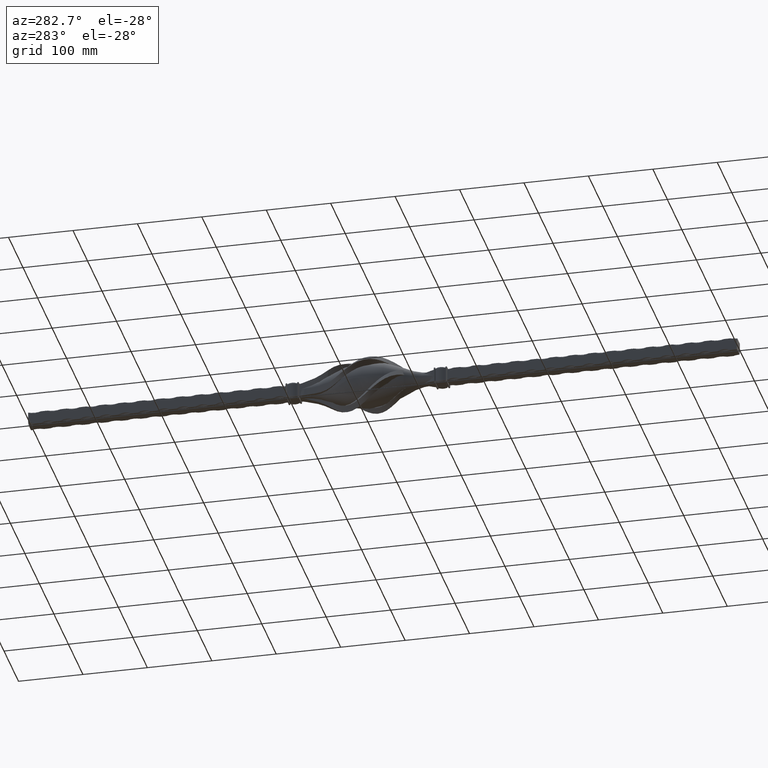
[diagram: clean part render]
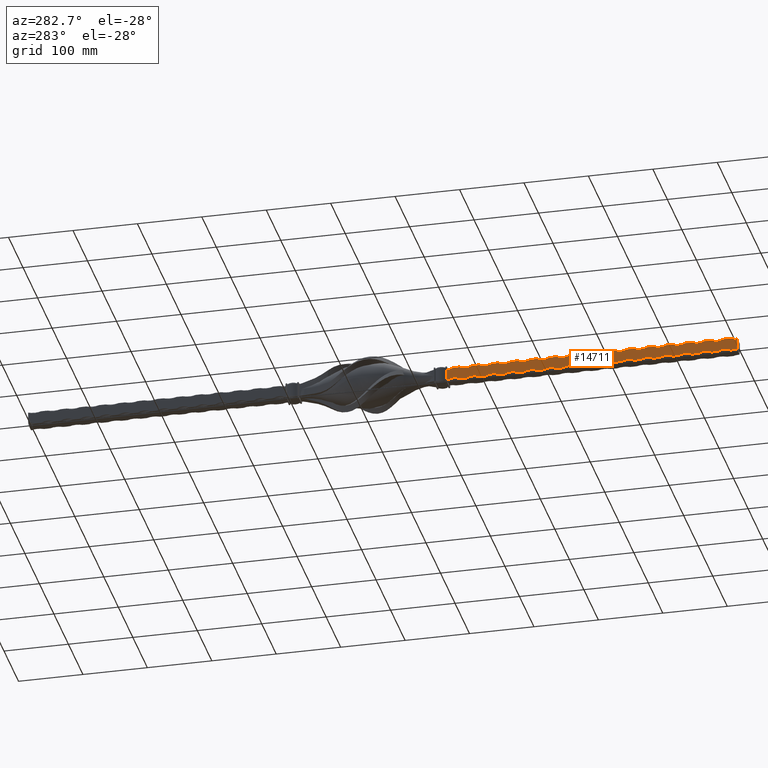
[diagram: same view with one face highlighted and labeled with its STEP entity id]
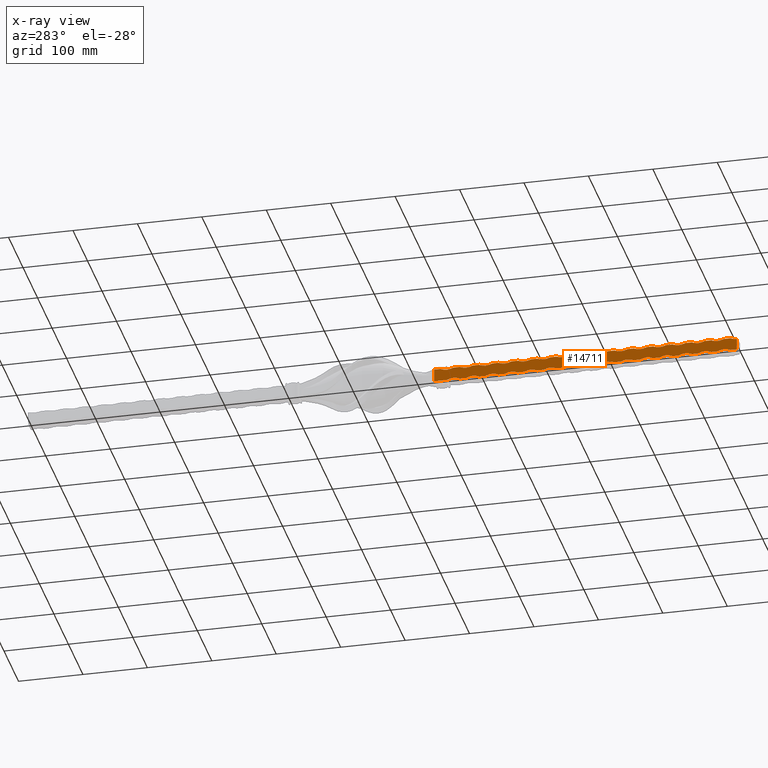
[diagram: x-ray of the same camera — body ghosted, the highlighted face saturated]
A machine part, auxiliary view. The second image highlights one B-rep face of the part: STEP entity #14711.
The next image is the same camera in x-ray: the body ghosted, the highlighted face saturated — about 0% of this face is hidden behind the body in this view.
In plain terms, the highlighted planar face has unit normal (1, 0, 0).
Its self-contained STEP definition (entity closure, byte-faithful):
#22 = AXIS2_PLACEMENT_3D ( 'NONE', #8139, #8230, #25063 ) ;
#45 = DIRECTION ( 'NONE',  ( 1.000000000000000000, 0.000000000000000000, 1.146305272925462611E-14 ) ) ;
#132 = FACE_OUTER_BOUND ( 'NONE', #1181, .T. ) ;
#171 = AXIS2_PLACEMENT_3D ( 'NONE', #12129, #1594, #22721 ) ;
#204 = AXIS2_PLACEMENT_3D ( 'NONE', #10256, #8358, #14726 ) ;
#220 = EDGE_CURVE ( 'NONE', #9223, #2714, #6724, .T. ) ;
#245 = VECTOR ( 'NONE', #13473, 1000.000000000000000 ) ;
#259 = VECTOR ( 'NONE', #478, 1000.000000000000000 ) ;
#324 = DIRECTION ( 'NONE',  ( 1.126549833810818380E-14, 0.000000000000000000, -1.000000000000000000 ) ) ;
#339 = AXIS2_PLACEMENT_3D ( 'NONE', #4257, #25103, #24757 ) ;
#394 = CARTESIAN_POINT ( 'NONE',  ( -9.999999999999895195, -125.0000000000000000, -10.00000000000010303 ) ) ;
#434 = VECTOR ( 'NONE', #11887, 1000.000000000000000 ) ;
#436 = DIRECTION ( 'NONE',  ( -0.000000000000000000, 1.000000000000000000, -0.000000000000000000 ) ) ;
#441 = CARTESIAN_POINT ( 'NONE',  ( -9.999999999999895195, -125.0000000000000000, -10.00000000000010303 ) ) ;
#455 = EDGE_CURVE ( 'NONE', #21417, #10397, #22700, .T. ) ;
#478 = DIRECTION ( 'NONE',  ( -0.000000000000000000, 1.000000000000000000, -0.000000000000000000 ) ) ;
#556 = CARTESIAN_POINT ( 'NONE',  ( -9.999999999999896971, -444.9999999999999432, -10.00000000000010303 ) ) ;
#596 = DIRECTION ( 'NONE',  ( -0.000000000000000000, 1.000000000000000000, -0.000000000000000000 ) ) ;
#615 = CARTESIAN_POINT ( 'NONE',  ( -10.00000000000002665, -224.9999999999999716, 9.999999999999779732 ) ) ;
#675 = ORIENTED_EDGE ( 'NONE', *, *, #6339, .F. ) ;
#752 = LINE ( 'NONE', #24609, #11471 ) ;
#780 = CARTESIAN_POINT ( 'NONE',  ( -9.999999999999685585, -434.9999999999999432, -28.75000000000014566 ) ) ;
#865 = CIRCLE ( 'NONE', #6550, 21.25000000000004263 ) ;
#873 = DIRECTION ( 'NONE',  ( 1.000000000000000000, 0.000000000000000000, 1.146305272925462611E-14 ) ) ;
#886 = DIRECTION ( 'NONE',  ( 1.000000000000000000, 0.000000000000000000, 1.146305272925462611E-14 ) ) ;
#1025 = DIRECTION ( 'NONE',  ( -0.000000000000000000, 1.000000000000000000, -0.000000000000000000 ) ) ;
#1036 = DIRECTION ( 'NONE',  ( -1.000000000000000000, -0.000000000000000000, -1.127570259384913094E-14 ) ) ;
#1042 = ORIENTED_EDGE ( 'NONE', *, *, #3835, .F. ) ;
#1043 = DIRECTION ( 'NONE',  ( 1.126549833810818380E-14, 0.000000000000000000, -1.000000000000000000 ) ) ;
#1076 = VERTEX_POINT ( 'NONE', #13615 ) ;
#1102 = CIRCLE ( 'NONE', #21281, 21.25000000000004263 ) ;
#1181 = EDGE_LOOP ( 'NONE', ( #23886, #26584, #5787, #2937, #9087, #5741, #18679, #21374, #5003, #6270, #5413, #4720, #24727, #22131, #22616, #14865, #26777, #8544, #13755, #26878, #17996, #10958, #16122, #14772, #23409, #14899, #7225, #1042, #24506, #18583, #7169, #24615, #1443, #26854, #5657, #18929, #17292, #17373, #675, #22915, #9505, #7115, #2018, #17991, #15880, #11504, #12773, #7960, #7676, #17014, #15387, #9119, #14026, #17795, #20606, #17283, #16092, #8601, #19183, #13248, #5330, #22215, #23571, #23260, #8198, #23336 ) ) ;
#1194 = DIRECTION ( 'NONE',  ( 1.126549833810818380E-14, 0.000000000000000000, -1.000000000000000000 ) ) ;
#1207 = VECTOR ( 'NONE', #14916, 1000.000000000000000 ) ;
#1293 = CARTESIAN_POINT ( 'NONE',  ( -10.00000000000007461, -385.0000000000002842, 9.999999999999998224 ) ) ;
#1300 = CARTESIAN_POINT ( 'NONE',  ( -10.00000000000032863, -514.9999999999998863, 28.74999999999981881 ) ) ;
#1354 = CARTESIAN_POINT ( 'NONE',  ( -9.999999999999895195, -125.0000000000000000, -10.00000000000010303 ) ) ;
#1373 = CARTESIAN_POINT ( 'NONE',  ( -9.999999999999895195, -125.0000000000000000, -10.00000000000010303 ) ) ;
#1378 = EDGE_CURVE ( 'NONE', #21791, #16204, #24911, .T. ) ;
#1434 = CARTESIAN_POINT ( 'NONE',  ( -9.999999999999896971, -504.9999999999998863, -10.00000000000010303 ) ) ;
#1443 = ORIENTED_EDGE ( 'NONE', *, *, #15230, .F. ) ;
#1452 = VERTEX_POINT ( 'NONE', #12029 ) ;
#1522 = CARTESIAN_POINT ( 'NONE',  ( -9.999999999999685585, -464.9999999999999432, -28.75000000000014566 ) ) ;
#1586 = VECTOR ( 'NONE', #14209, 1000.000000000000000 ) ;
#1594 = DIRECTION ( 'NONE',  ( 1.000000000000000000, 0.000000000000000000, 1.146305272925462611E-14 ) ) ;
#1596 = CARTESIAN_POINT ( 'NONE',  ( -9.999999999999895195, -125.0000000000000000, -10.00000000000010303 ) ) ;
#1660 = LINE ( 'NONE', #1373, #5202 ) ;
#1720 = VERTEX_POINT ( 'NONE', #556 ) ;
#1733 = VECTOR ( 'NONE', #9378, 1000.000000000000000 ) ;
#1774 = CARTESIAN_POINT ( 'NONE',  ( -10.00000000000027001, -304.9999999999999432, 28.74999999999981881 ) ) ;
#1849 = CARTESIAN_POINT ( 'NONE',  ( -9.999999999999985789, -575.0000000000000000, 7.500000000000105693 ) ) ;
#1876 = CARTESIAN_POINT ( 'NONE',  ( -10.00000000000022915, -154.9999999999999147, 28.74999999999981881 ) ) ;
#1959 = EDGE_CURVE ( 'NONE', #11846, #14161, #12831, .T. ) ;
#2018 = ORIENTED_EDGE ( 'NONE', *, *, #21867, .F. ) ;
#2092 = VECTOR ( 'NONE', #5177, 1000.000000000000000 ) ;
#2154 = CIRCLE ( 'NONE', #17182, 21.25000000000004263 ) ;
#2219 = CARTESIAN_POINT ( 'NONE',  ( -10.00000000000000711, -125.0000000000000000, 2.016034179631888492E-15 ) ) ;
#2236 = VERTEX_POINT ( 'NONE', #23096 ) ;
#2238 = AXIS2_PLACEMENT_3D ( 'NONE', #11027, #25603, #6935 ) ;
#2251 = EDGE_CURVE ( 'NONE', #10397, #17708, #2410, .T. ) ;
#2314 = CARTESIAN_POINT ( 'NONE',  ( -10.00000000000025580, -244.9999999999999432, 28.74999999999981881 ) ) ;
#2373 = EDGE_CURVE ( 'NONE', #13582, #20031, #17719, .T. ) ;
#2398 = PLANE ( 'NONE',  #9874 ) ;
#2410 = LINE ( 'NONE', #394, #22620 ) ;
#2436 = DIRECTION ( 'NONE',  ( -0.000000000000000000, 1.000000000000000000, -0.000000000000000000 ) ) ;
#2623 = VERTEX_POINT ( 'NONE', #9404 ) ;
#2655 = VECTOR ( 'NONE', #13702, 1000.000000000000000 ) ;
#2706 = EDGE_CURVE ( 'NONE', #22708, #14442, #23239, .T. ) ;
#2710 = EDGE_CURVE ( 'NONE', #11077, #6937, #11139, .T. ) ;
#2714 = VERTEX_POINT ( 'NONE', #1434 ) ;
#2725 = CARTESIAN_POINT ( 'NONE',  ( -9.999999999999895195, -125.0000000000000000, -10.00000000000010303 ) ) ;
#2823 = CARTESIAN_POINT ( 'NONE',  ( -10.00000000000010836, -524.9999999999998863, 9.999999999999779732 ) ) ;
#2829 = EDGE_CURVE ( 'NONE', #7554, #7219, #3676, .T. ) ;
#2885 = LINE ( 'NONE', #11696, #26000 ) ;
#2905 = VECTOR ( 'NONE', #12034, 1000.000000000000000 ) ;
#2937 = ORIENTED_EDGE ( 'NONE', *, *, #8137, .T. ) ;
#2945 = LINE ( 'NONE', #23991, #12716 ) ;
#2949 = CARTESIAN_POINT ( 'NONE',  ( -10.00000000000008349, -434.9999999999999432, 9.999999999999779732 ) ) ;
#3067 = CARTESIAN_POINT ( 'NONE',  ( -9.999999999999896971, -264.9999999999999432, -10.00000000000010303 ) ) ;
#3093 = CARTESIAN_POINT ( 'NONE',  ( -9.999999999999998224, -125.0000000000000000, 9.999999999999998224 ) ) ;
#3237 = DIRECTION ( 'NONE',  ( -1.000000000000000000, -0.000000000000000000, -1.127570259384913094E-14 ) ) ;
#3280 = VERTEX_POINT ( 'NONE', #11339 ) ;
#3294 = CIRCLE ( 'NONE', #4846, 21.25000000000003908 ) ;
#3370 = EDGE_CURVE ( 'NONE', #16793, #9277, #10169, .T. ) ;
#3526 = EDGE_CURVE ( 'NONE', #1452, #17317, #16690, .T. ) ;
#3541 = CIRCLE ( 'NONE', #20170, 21.25000000000003908 ) ;
#3568 = CARTESIAN_POINT ( 'NONE',  ( -9.999999999999895195, -125.0000000000000000, -10.00000000000010303 ) ) ;
#3626 = LINE ( 'NONE', #7935, #9808 ) ;
#3646 = CARTESIAN_POINT ( 'NONE',  ( -9.999999999999895195, -125.0000000000000000, -10.00000000000010303 ) ) ;
#3676 = CIRCLE ( 'NONE', #18209, 21.25000000000003908 ) ;
#3726 = AXIS2_PLACEMENT_3D ( 'NONE', #1300, #26117, #5091 ) ;
#3793 = DIRECTION ( 'NONE',  ( -0.000000000000000000, 1.000000000000000000, -0.000000000000000000 ) ) ;
#3814 = VERTEX_POINT ( 'NONE', #18730 ) ;
#3835 = EDGE_CURVE ( 'NONE', #9932, #6562, #6570, .T. ) ;
#3872 = CIRCLE ( 'NONE', #24468, 21.25000000000004263 ) ;
#3946 = CARTESIAN_POINT ( 'NONE',  ( -9.999999999999998224, -125.0000000000000000, 9.999999999999998224 ) ) ;
#3965 = VERTEX_POINT ( 'NONE', #17138 ) ;
#4117 = CARTESIAN_POINT ( 'NONE',  ( -9.999999999999896971, -384.9999999999999432, -10.00000000000010303 ) ) ;
#4206 = CARTESIAN_POINT ( 'NONE',  ( -10.00000000000000178, -115.0000000000003411, 9.999999999999998224 ) ) ;
#4257 = CARTESIAN_POINT ( 'NONE',  ( -9.999999999999685585, -314.9999999999999432, -28.75000000000014566 ) ) ;
#4391 = EDGE_CURVE ( 'NONE', #23434, #1452, #18961, .T. ) ;
#4541 = VECTOR ( 'NONE', #15042, 1000.000000000000000 ) ;
#4573 = EDGE_CURVE ( 'NONE', #16573, #23434, #20591, .T. ) ;
#4587 = VECTOR ( 'NONE', #17902, 1000.000000000000000 ) ;
#4720 = ORIENTED_EDGE ( 'NONE', *, *, #14518, .T. ) ;
#4803 = DIRECTION ( 'NONE',  ( -0.000000000000000000, 1.000000000000000000, -0.000000000000000000 ) ) ;
#4846 = AXIS2_PLACEMENT_3D ( 'NONE', #2314, #45, #6312 ) ;
#4902 = VECTOR ( 'NONE', #20984, 1000.000000000000000 ) ;
#4918 = CIRCLE ( 'NONE', #12348, 21.25000000000003908 ) ;
#4976 = VECTOR ( 'NONE', #26363, 1000.000000000000000 ) ;
#5003 = ORIENTED_EDGE ( 'NONE', *, *, #26241, .T. ) ;
#5091 = DIRECTION ( 'NONE',  ( -1.175530261367810682E-14, -5.224578939412491483E-15, 1.000000000000000000 ) ) ;
#5128 = DIRECTION ( 'NONE',  ( 1.126549833810818380E-14, 0.000000000000000000, -1.000000000000000000 ) ) ;
#5177 = DIRECTION ( 'NONE',  ( -0.000000000000000000, 1.000000000000000000, -0.000000000000000000 ) ) ;
#5178 = DIRECTION ( 'NONE',  ( -1.000000000000000000, -0.000000000000000000, -1.127570259384913094E-14 ) ) ;
#5202 = VECTOR ( 'NONE', #14005, 1000.000000000000000 ) ;
#5275 = DIRECTION ( 'NONE',  ( -1.000000000000000000, -0.000000000000000000, -1.127570259384913094E-14 ) ) ;
#5296 = CARTESIAN_POINT ( 'NONE',  ( -10.00000000000005862, -325.0000000000003411, 9.999999999999998224 ) ) ;
#5330 = ORIENTED_EDGE ( 'NONE', *, *, #16792, .T. ) ;
#5413 = ORIENTED_EDGE ( 'NONE', *, *, #2373, .T. ) ;
#5500 = VERTEX_POINT ( 'NONE', #22458 ) ;
#5537 = VERTEX_POINT ( 'NONE', #18452 ) ;
#5548 = EDGE_CURVE ( 'NONE', #23177, #3280, #7485, .T. ) ;
#5608 = CARTESIAN_POINT ( 'NONE',  ( -9.999999999999896971, -235.0000000000000000, -10.00000000000010303 ) ) ;
#5639 = CARTESIAN_POINT ( 'NONE',  ( -10.00000000000000888, -164.9999999999999147, 9.999999999999779732 ) ) ;
#5657 = ORIENTED_EDGE ( 'NONE', *, *, #8609, .F. ) ;
#5700 = CARTESIAN_POINT ( 'NONE',  ( -10.00000000000033751, -544.9999999999998863, 28.74999999999981881 ) ) ;
#5741 = ORIENTED_EDGE ( 'NONE', *, *, #23287, .T. ) ;
#5787 = ORIENTED_EDGE ( 'NONE', *, *, #7864, .T. ) ;
#5811 = CIRCLE ( 'NONE', #25696, 21.25000000000003908 ) ;
#5858 = DIRECTION ( 'NONE',  ( 1.000000000000000000, 0.000000000000000000, 1.146305272925462611E-14 ) ) ;
#6023 = DIRECTION ( 'NONE',  ( -1.000000000000000000, -0.000000000000000000, -1.127570259384913094E-14 ) ) ;
#6052 = DIRECTION ( 'NONE',  ( 1.000000000000000000, 0.000000000000000000, 1.146305272925462611E-14 ) ) ;
#6113 = CARTESIAN_POINT ( 'NONE',  ( -9.999999999999895195, -394.9999999999998863, -10.00000000000010303 ) ) ;
#6195 = DIRECTION ( 'NONE',  ( 1.126549833810818380E-14, 0.000000000000000000, -1.000000000000000000 ) ) ;
#6247 = CARTESIAN_POINT ( 'NONE',  ( -10.00000000000000711, -105.0000000000000142, 2.016034179631888492E-15 ) ) ;
#6270 = ORIENTED_EDGE ( 'NONE', *, *, #17436, .T. ) ;
#6287 = CIRCLE ( 'NONE', #17995, 21.25000000000004263 ) ;
#6312 = DIRECTION ( 'NONE',  ( -1.175530261367810682E-14, 1.306144734853122871E-15, 1.000000000000000000 ) ) ;
#6339 = EDGE_CURVE ( 'NONE', #17174, #11846, #25353, .T. ) ;
#6405 = CARTESIAN_POINT ( 'NONE',  ( -9.999999999999998224, -105.0000000000000142, -1.047444401652939880E-13 ) ) ;
#6458 = EDGE_CURVE ( 'NONE', #14442, #25816, #2885, .T. ) ;
#6550 = AXIS2_PLACEMENT_3D ( 'NONE', #1522, #15809, #7863 ) ;
#6562 = VERTEX_POINT ( 'NONE', #6247 ) ;
#6570 = LINE ( 'NONE', #6405, #22223 ) ;
#6614 = CARTESIAN_POINT ( 'NONE',  ( -9.999999999999896971, -355.0000000000000000, -10.00000000000010303 ) ) ;
#6662 = EDGE_CURVE ( 'NONE', #1720, #12764, #18232, .T. ) ;
#6695 = EDGE_CURVE ( 'NONE', #3814, #2236, #12320, .T. ) ;
#6724 = LINE ( 'NONE', #26740, #1207 ) ;
#6793 = DIRECTION ( 'NONE',  ( 1.000000000000000000, 0.000000000000000000, 1.146305272925462611E-14 ) ) ;
#6848 = CARTESIAN_POINT ( 'NONE',  ( -9.999999999999895195, -125.0000000000000000, -10.00000000000010303 ) ) ;
#6935 = DIRECTION ( 'NONE',  ( 1.126549833810818380E-14, 2.612289469706245347E-15, -1.000000000000000000 ) ) ;
#6937 = VERTEX_POINT ( 'NONE', #23613 ) ;
#7115 = ORIENTED_EDGE ( 'NONE', *, *, #20510, .F. ) ;
#7169 = ORIENTED_EDGE ( 'NONE', *, *, #2251, .F. ) ;
#7193 = VERTEX_POINT ( 'NONE', #1849 ) ;
#7219 = VERTEX_POINT ( 'NONE', #8033 ) ;
#7225 = ORIENTED_EDGE ( 'NONE', *, *, #10676, .F. ) ;
#7250 = VERTEX_POINT ( 'NONE', #10733 ) ;
#7435 = VECTOR ( 'NONE', #17266, 1000.000000000000000 ) ;
#7485 = LINE ( 'NONE', #1596, #2905 ) ;
#7554 = VERTEX_POINT ( 'NONE', #5639 ) ;
#7568 = DIRECTION ( 'NONE',  ( -0.000000000000000000, 1.000000000000000000, -0.000000000000000000 ) ) ;
#7580 = CARTESIAN_POINT ( 'NONE',  ( -9.999999999999998224, -125.0000000000000000, 9.999999999999998224 ) ) ;
#7625 = VERTEX_POINT ( 'NONE', #8271 ) ;
#7632 = CARTESIAN_POINT ( 'NONE',  ( -9.999999999999895195, -214.9999999999999716, -10.00000000000010303 ) ) ;
#7643 = VERTEX_POINT ( 'NONE', #6614 ) ;
#7676 = ORIENTED_EDGE ( 'NONE', *, *, #22240, .F. ) ;
#7711 = EDGE_CURVE ( 'NONE', #24712, #22708, #10670, .T. ) ;
#7754 = AXIS2_PLACEMENT_3D ( 'NONE', #13561, #5275, #19978 ) ;
#7755 = DIRECTION ( 'NONE',  ( -0.000000000000000000, 1.000000000000000000, -0.000000000000000000 ) ) ;
#7790 = CARTESIAN_POINT ( 'NONE',  ( -9.999999999999998224, -125.0000000000000000, 9.999999999999998224 ) ) ;
#7841 = CARTESIAN_POINT ( 'NONE',  ( -9.999999999999685585, -254.9999999999999432, -28.75000000000014566 ) ) ;
#7863 = DIRECTION ( 'NONE',  ( 1.126549833810818380E-14, 0.000000000000000000, -1.000000000000000000 ) ) ;
#7864 = EDGE_CURVE ( 'NONE', #17317, #13944, #17214, .T. ) ;
#7922 = CARTESIAN_POINT ( 'NONE',  ( -9.999999999999998224, -105.0000000000000142, 9.999999999999998224 ) ) ;
#7935 = CARTESIAN_POINT ( 'NONE',  ( -9.999999999999895195, -125.0000000000000000, -10.00000000000010303 ) ) ;
#7960 = ORIENTED_EDGE ( 'NONE', *, *, #21824, .F. ) ;
#8033 = CARTESIAN_POINT ( 'NONE',  ( -10.00000000000000888, -145.0000000000002842, 9.999999999999998224 ) ) ;
#8044 = CARTESIAN_POINT ( 'NONE',  ( -10.00000000000032152, -484.9999999999999432, 28.74999999999981881 ) ) ;
#8053 = VERTEX_POINT ( 'NONE', #24448 ) ;
#8131 = DIRECTION ( 'NONE',  ( 1.000000000000000000, 0.000000000000000000, 1.146305272925462611E-14 ) ) ;
#8137 = EDGE_CURVE ( 'NONE', #13944, #22451, #22137, .T. ) ;
#8139 = CARTESIAN_POINT ( 'NONE',  ( -10.00000000000023803, -184.9999999999999432, 28.74999999999981881 ) ) ;
#8198 = ORIENTED_EDGE ( 'NONE', *, *, #25990, .T. ) ;
#8230 = DIRECTION ( 'NONE',  ( 1.000000000000000000, 0.000000000000000000, 1.146305272925462611E-14 ) ) ;
#8268 = DIRECTION ( 'NONE',  ( -0.000000000000000000, 1.000000000000000000, -0.000000000000000000 ) ) ;
#8271 = CARTESIAN_POINT ( 'NONE',  ( -9.999999999999896971, -534.9999999999998863, -10.00000000000010303 ) ) ;
#8358 = DIRECTION ( 'NONE',  ( 1.000000000000000000, 0.000000000000000000, 1.146305272925462611E-14 ) ) ;
#8429 = DIRECTION ( 'NONE',  ( -0.000000000000000000, 1.000000000000000000, -0.000000000000000000 ) ) ;
#8452 = EDGE_CURVE ( 'NONE', #2236, #22755, #18521, .T. ) ;
#8544 = ORIENTED_EDGE ( 'NONE', *, *, #20738, .T. ) ;
#8601 = ORIENTED_EDGE ( 'NONE', *, *, #25993, .F. ) ;
#8609 = EDGE_CURVE ( 'NONE', #25575, #23631, #12291, .T. ) ;
#8790 = DIRECTION ( 'NONE',  ( -0.000000000000000000, 1.000000000000000000, -0.000000000000000000 ) ) ;
#8823 = CARTESIAN_POINT ( 'NONE',  ( -9.999999999999685585, -524.9999999999998863, -28.75000000000014566 ) ) ;
#8925 = VECTOR ( 'NONE', #7755, 1000.000000000000000 ) ;
#8968 = VERTEX_POINT ( 'NONE', #16862 ) ;
#9011 = CARTESIAN_POINT ( 'NONE',  ( -9.999999999999895195, -484.9999999999999432, -10.00000000000010303 ) ) ;
#9082 = CARTESIAN_POINT ( 'NONE',  ( -9.999999999999685585, -345.0000000000000000, -28.75000000000014566 ) ) ;
#9087 = ORIENTED_EDGE ( 'NONE', *, *, #17476, .T. ) ;
#9119 = ORIENTED_EDGE ( 'NONE', *, *, #26791, .F. ) ;
#9189 = VERTEX_POINT ( 'NONE', #1293 ) ;
#9215 = VERTEX_POINT ( 'NONE', #17779 ) ;
#9223 = VERTEX_POINT ( 'NONE', #19970 ) ;
#9254 = AXIS2_PLACEMENT_3D ( 'NONE', #9627, #12000, #20324 ) ;
#9277 = VERTEX_POINT ( 'NONE', #14198 ) ;
#9378 = DIRECTION ( 'NONE',  ( -0.000000000000000000, 1.000000000000000000, -0.000000000000000000 ) ) ;
#9404 = CARTESIAN_POINT ( 'NONE',  ( -9.999999999999896971, -294.9999999999999432, -10.00000000000010303 ) ) ;
#9411 = CIRCLE ( 'NONE', #14332, 21.25000000000004263 ) ;
#9505 = ORIENTED_EDGE ( 'NONE', *, *, #13019, .F. ) ;
#9627 = CARTESIAN_POINT ( 'NONE',  ( -10.00000000000024691, -214.9999999999999716, 28.74999999999981881 ) ) ;
#9742 = DIRECTION ( 'NONE',  ( -0.000000000000000000, 1.000000000000000000, -0.000000000000000000 ) ) ;
#9808 = VECTOR ( 'NONE', #24594, 1000.000000000000000 ) ;
#9874 = AXIS2_PLACEMENT_3D ( 'NONE', #2219, #10572, #25139 ) ;
#9918 = AXIS2_PLACEMENT_3D ( 'NONE', #25740, #19509, #11171 ) ;
#9932 = VERTEX_POINT ( 'NONE', #16883 ) ;
#10011 = CIRCLE ( 'NONE', #22772, 21.25000000000003908 ) ;
#10051 = CARTESIAN_POINT ( 'NONE',  ( -10.00000000000003553, -254.9999999999999432, 9.999999999999779732 ) ) ;
#10095 = DIRECTION ( 'NONE',  ( -1.175530261367810682E-14, 0.000000000000000000, 1.000000000000000000 ) ) ;
#10133 = CARTESIAN_POINT ( 'NONE',  ( -9.999999999999998224, -125.0000000000000000, 9.999999999999998224 ) ) ;
#10169 = CIRCLE ( 'NONE', #9254, 21.25000000000003908 ) ;
#10203 = CARTESIAN_POINT ( 'NONE',  ( -10.00000000000006750, -355.0000000000003411, 9.999999999999998224 ) ) ;
#10256 = CARTESIAN_POINT ( 'NONE',  ( -10.00000000000027889, -334.9999999999999432, 28.74999999999981881 ) ) ;
#10267 = VERTEX_POINT ( 'NONE', #10203 ) ;
#10397 = VERTEX_POINT ( 'NONE', #18341 ) ;
#10572 = DIRECTION ( 'NONE',  ( 1.000000000000000000, 0.000000000000000000, 1.127570259384913094E-14 ) ) ;
#10646 = EDGE_CURVE ( 'NONE', #7250, #11077, #14927, .T. ) ;
#10670 = LINE ( 'NONE', #14914, #11992 ) ;
#10676 = EDGE_CURVE ( 'NONE', #6562, #6937, #25975, .T. ) ;
#10684 = EDGE_CURVE ( 'NONE', #22305, #9189, #5811, .T. ) ;
#10733 = CARTESIAN_POINT ( 'NONE',  ( -10.00000000000000178, -134.9999999999999432, 9.999999999999779732 ) ) ;
#10750 = VERTEX_POINT ( 'NONE', #19469 ) ;
#10877 = CARTESIAN_POINT ( 'NONE',  ( -10.00000000000015987, -575.0000000000000000, 28.75000000000014211 ) ) ;
#10883 = DIRECTION ( 'NONE',  ( -0.000000000000000000, 1.000000000000000000, -0.000000000000000000 ) ) ;
#10908 = EDGE_CURVE ( 'NONE', #26515, #9215, #3541, .T. ) ;
#10921 = DIRECTION ( 'NONE',  ( 1.126549833810818380E-14, 0.000000000000000000, -1.000000000000000000 ) ) ;
#10958 = ORIENTED_EDGE ( 'NONE', *, *, #26514, .T. ) ;
#11027 = CARTESIAN_POINT ( 'NONE',  ( -9.999999999999685585, -494.9999999999999432, -28.75000000000014566 ) ) ;
#11047 = VECTOR ( 'NONE', #12585, 1000.000000000000000 ) ;
#11077 = VERTEX_POINT ( 'NONE', #4206 ) ;
#11090 = EDGE_CURVE ( 'NONE', #9215, #3814, #17508, .T. ) ;
#11102 = VERTEX_POINT ( 'NONE', #20991 ) ;
#11111 = CARTESIAN_POINT ( 'NONE',  ( -9.999999999999895195, -274.9999999999998863, -10.00000000000010303 ) ) ;
#11122 = VERTEX_POINT ( 'NONE', #23089 ) ;
#11139 = LINE ( 'NONE', #7790, #13114 ) ;
#11171 = DIRECTION ( 'NONE',  ( 1.126549833810818380E-14, 0.000000000000000000, -1.000000000000000000 ) ) ;
#11339 = CARTESIAN_POINT ( 'NONE',  ( -9.999999999999896971, -475.0000000000000000, -10.00000000000010303 ) ) ;
#11388 = CARTESIAN_POINT ( 'NONE',  ( -9.999999999999895195, -304.9999999999999432, -10.00000000000010303 ) ) ;
#11471 = VECTOR ( 'NONE', #18272, 1000.000000000000000 ) ;
#11499 = CARTESIAN_POINT ( 'NONE',  ( -10.00000000000011724, -554.9999999999998863, 9.999999999999779732 ) ) ;
#11504 = ORIENTED_EDGE ( 'NONE', *, *, #24347, .F. ) ;
#11696 = CARTESIAN_POINT ( 'NONE',  ( -9.999999999999998224, -125.0000000000000000, 9.999999999999998224 ) ) ;
#11846 = VERTEX_POINT ( 'NONE', #3067 ) ;
#11887 = DIRECTION ( 'NONE',  ( 5.204170427930395251E-15, 0.000000000000000000, -1.000000000000000000 ) ) ;
#11968 = DIRECTION ( 'NONE',  ( -1.175530261367810682E-14, 2.612289469706245741E-15, 1.000000000000000000 ) ) ;
#11992 = VECTOR ( 'NONE', #436, 1000.000000000000000 ) ;
#12000 = DIRECTION ( 'NONE',  ( 1.000000000000000000, 0.000000000000000000, 1.146305272925462611E-14 ) ) ;
#12029 = CARTESIAN_POINT ( 'NONE',  ( -10.00000000000010125, -475.0000000000002842, 9.999999999999998224 ) ) ;
#12034 = DIRECTION ( 'NONE',  ( -0.000000000000000000, 1.000000000000000000, -0.000000000000000000 ) ) ;
#12129 = CARTESIAN_POINT ( 'NONE',  ( -10.00000000000030376, -424.9999999999999432, 28.74999999999981881 ) ) ;
#12278 = EDGE_CURVE ( 'NONE', #2623, #17174, #23997, .T. ) ;
#12291 = LINE ( 'NONE', #6848, #23687 ) ;
#12320 = CIRCLE ( 'NONE', #22792, 21.25000000000003908 ) ;
#12339 = CARTESIAN_POINT ( 'NONE',  ( -9.999999999999998224, -125.0000000000000000, 9.999999999999998224 ) ) ;
#12348 = AXIS2_PLACEMENT_3D ( 'NONE', #10877, #6793, #23476 ) ;
#12350 = VECTOR ( 'NONE', #9742, 1000.000000000000000 ) ;
#12379 = CARTESIAN_POINT ( 'NONE',  ( -9.999999999999685585, -404.9999999999999432, -28.75000000000014566 ) ) ;
#12395 = EDGE_CURVE ( 'NONE', #17708, #8968, #2154, .T. ) ;
#12542 = AXIS2_PLACEMENT_3D ( 'NONE', #13643, #24125, #1194 ) ;
#12585 = DIRECTION ( 'NONE',  ( -0.000000000000000000, 1.000000000000000000, -0.000000000000000000 ) ) ;
#12668 = DIRECTION ( 'NONE',  ( -0.000000000000000000, 1.000000000000000000, -0.000000000000000000 ) ) ;
#12716 = VECTOR ( 'NONE', #1025, 1000.000000000000000 ) ;
#12758 = CARTESIAN_POINT ( 'NONE',  ( -9.999999999999895195, -125.0000000000000000, -10.00000000000010303 ) ) ;
#12764 = VERTEX_POINT ( 'NONE', #25488 ) ;
#12773 = ORIENTED_EDGE ( 'NONE', *, *, #1378, .F. ) ;
#12831 = CIRCLE ( 'NONE', #19764, 21.25000000000004263 ) ;
#13015 = CIRCLE ( 'NONE', #22, 21.25000000000003908 ) ;
#13019 = EDGE_CURVE ( 'NONE', #16081, #2623, #25236, .T. ) ;
#13114 = VECTOR ( 'NONE', #26524, 1000.000000000000000 ) ;
#13144 = LINE ( 'NONE', #3093, #2092 ) ;
#13235 = AXIS2_PLACEMENT_3D ( 'NONE', #12379, #26857, #6195 ) ;
#13248 = ORIENTED_EDGE ( 'NONE', *, *, #15516, .F. ) ;
#13323 = CARTESIAN_POINT ( 'NONE',  ( -10.00000000000031264, -454.9999999999999432, 28.74999999999981881 ) ) ;
#13341 = CARTESIAN_POINT ( 'NONE',  ( -10.00000000000006750, -374.9999999999999432, 9.999999999999779732 ) ) ;
#13371 = VERTEX_POINT ( 'NONE', #15596 ) ;
#13435 = CARTESIAN_POINT ( 'NONE',  ( -9.999999999999896971, -204.9999999999999716, -10.00000000000010303 ) ) ;
#13473 = DIRECTION ( 'NONE',  ( -0.000000000000000000, 1.000000000000000000, -0.000000000000000000 ) ) ;
#13484 = CARTESIAN_POINT ( 'NONE',  ( -9.999999999999939604, -565.0000000000003411, 10.00000000000032685 ) ) ;
#13518 = CARTESIAN_POINT ( 'NONE',  ( -9.999999999999685585, -374.9999999999999432, -28.75000000000014566 ) ) ;
#13561 = CARTESIAN_POINT ( 'NONE',  ( -9.999999999999685585, -554.9999999999998863, -28.75000000000014566 ) ) ;
#13582 = VERTEX_POINT ( 'NONE', #26868 ) ;
#13592 = EDGE_CURVE ( 'NONE', #25275, #7643, #16752, .T. ) ;
#13615 = CARTESIAN_POINT ( 'NONE',  ( -9.999999999999895195, -575.0000000000000000, -10.00000000000010303 ) ) ;
#13643 = CARTESIAN_POINT ( 'NONE',  ( -9.999999999999685585, -164.9999999999999147, -28.75000000000014566 ) ) ;
#13688 = CARTESIAN_POINT ( 'NONE',  ( -10.00000000000026290, -274.9999999999998863, 28.74999999999981881 ) ) ;
#13702 = DIRECTION ( 'NONE',  ( -0.000000000000000000, 1.000000000000000000, -0.000000000000000000 ) ) ;
#13755 = ORIENTED_EDGE ( 'NONE', *, *, #3370, .T. ) ;
#13885 = DIRECTION ( 'NONE',  ( 1.000000000000000000, 0.000000000000000000, 1.146305272925462611E-14 ) ) ;
#13941 = CARTESIAN_POINT ( 'NONE',  ( -9.999999999999998224, -125.0000000000000000, 9.999999999999998224 ) ) ;
#13944 = VERTEX_POINT ( 'NONE', #17952 ) ;
#14005 = DIRECTION ( 'NONE',  ( -0.000000000000000000, 1.000000000000000000, -0.000000000000000000 ) ) ;
#14026 = ORIENTED_EDGE ( 'NONE', *, *, #5548, .F. ) ;
#14143 = DIRECTION ( 'NONE',  ( -1.175530261367810682E-14, 2.612289469706245741E-15, 1.000000000000000000 ) ) ;
#14161 = VERTEX_POINT ( 'NONE', #25608 ) ;
#14182 = VERTEX_POINT ( 'NONE', #15235 ) ;
#14198 = CARTESIAN_POINT ( 'NONE',  ( -10.00000000000002665, -205.0000000000003411, 9.999999999999998224 ) ) ;
#14209 = DIRECTION ( 'NONE',  ( 8.673617379884037444E-16, 0.000000000000000000, 1.000000000000000000 ) ) ;
#14332 = AXIS2_PLACEMENT_3D ( 'NONE', #9082, #5178, #25749 ) ;
#14424 = DIRECTION ( 'NONE',  ( -1.175530261367810682E-14, 1.306144734853122871E-15, 1.000000000000000000 ) ) ;
#14441 = CARTESIAN_POINT ( 'NONE',  ( -10.00000000000004974, -314.9999999999999432, 9.999999999999779732 ) ) ;
#14442 = VERTEX_POINT ( 'NONE', #18099 ) ;
#14518 = EDGE_CURVE ( 'NONE', #20031, #26515, #752, .T. ) ;
#14561 = CIRCLE ( 'NONE', #7754, 21.25000000000004263 ) ;
#14711 = ADVANCED_FACE ( 'NONE', ( #132 ), #2398, .F. ) ;
#14726 = DIRECTION ( 'NONE',  ( -1.175530261367810682E-14, 2.612289469706245741E-15, 1.000000000000000000 ) ) ;
#14772 = ORIENTED_EDGE ( 'NONE', *, *, #22929, .T. ) ;
#14778 = CIRCLE ( 'NONE', #2238, 21.25000000000004263 ) ;
#14865 = ORIENTED_EDGE ( 'NONE', *, *, #8452, .T. ) ;
#14899 = ORIENTED_EDGE ( 'NONE', *, *, #2710, .T. ) ;
#14914 = CARTESIAN_POINT ( 'NONE',  ( -9.999999999999998224, -125.0000000000000000, 9.999999999999998224 ) ) ;
#14916 = DIRECTION ( 'NONE',  ( -0.000000000000000000, 1.000000000000000000, -0.000000000000000000 ) ) ;
#14927 = CIRCLE ( 'NONE', #25352, 21.25000000000003908 ) ;
#15042 = DIRECTION ( 'NONE',  ( -0.000000000000000000, 1.000000000000000000, -0.000000000000000000 ) ) ;
#15230 = EDGE_CURVE ( 'NONE', #26370, #21417, #24850, .T. ) ;
#15235 = CARTESIAN_POINT ( 'NONE',  ( -9.999999999999896971, -414.9999999999999432, -10.00000000000010303 ) ) ;
#15387 = ORIENTED_EDGE ( 'NONE', *, *, #20026, .F. ) ;
#15516 = EDGE_CURVE ( 'NONE', #7193, #1076, #17043, .T. ) ;
#15551 = EDGE_CURVE ( 'NONE', #1076, #23611, #23891, .T. ) ;
#15596 = CARTESIAN_POINT ( 'NONE',  ( -10.00000000000003553, -235.0000000000003126, 9.999999999999998224 ) ) ;
#15716 = VECTOR ( 'NONE', #8268, 1000.000000000000000 ) ;
#15809 = DIRECTION ( 'NONE',  ( -1.000000000000000000, -0.000000000000000000, -1.127570259384913094E-14 ) ) ;
#15880 = ORIENTED_EDGE ( 'NONE', *, *, #13592, .F. ) ;
#15907 = EDGE_CURVE ( 'NONE', #2714, #23177, #14778, .T. ) ;
#15928 = CARTESIAN_POINT ( 'NONE',  ( -9.999999999999895195, -184.9999999999999432, -10.00000000000010303 ) ) ;
#16081 = VERTEX_POINT ( 'NONE', #11388 ) ;
#16092 = ORIENTED_EDGE ( 'NONE', *, *, #20966, .F. ) ;
#16122 = ORIENTED_EDGE ( 'NONE', *, *, #2829, .T. ) ;
#16204 = VERTEX_POINT ( 'NONE', #4117 ) ;
#16447 = EDGE_CURVE ( 'NONE', #23631, #26370, #17677, .T. ) ;
#16573 = VERTEX_POINT ( 'NONE', #20061 ) ;
#16690 = LINE ( 'NONE', #26376, #15716 ) ;
#16752 = LINE ( 'NONE', #2725, #18739 ) ;
#16792 = EDGE_CURVE ( 'NONE', #7193, #24712, #4918, .T. ) ;
#16793 = VERTEX_POINT ( 'NONE', #615 ) ;
#16797 = DIRECTION ( 'NONE',  ( -1.000000000000000000, -0.000000000000000000, -1.127570259384913094E-14 ) ) ;
#16862 = CARTESIAN_POINT ( 'NONE',  ( -9.999999999999895195, -124.9999999999999432, -10.00000000000010303 ) ) ;
#16867 = CARTESIAN_POINT ( 'NONE',  ( -9.999999999999998224, -125.0000000000000000, 9.999999999999998224 ) ) ;
#16883 = CARTESIAN_POINT ( 'NONE',  ( -9.999999999999895195, -105.0000000000000142, -10.00000000000010303 ) ) ;
#16954 = VERTEX_POINT ( 'NONE', #5608 ) ;
#17014 = ORIENTED_EDGE ( 'NONE', *, *, #6662, .F. ) ;
#17043 = LINE ( 'NONE', #20218, #434 ) ;
#17138 = CARTESIAN_POINT ( 'NONE',  ( -9.999999999999895195, -334.9999999999999432, -10.00000000000010303 ) ) ;
#17174 = VERTEX_POINT ( 'NONE', #11111 ) ;
#17182 = AXIS2_PLACEMENT_3D ( 'NONE', #17531, #23629, #17720 ) ;
#17214 = CIRCLE ( 'NONE', #23638, 21.25000000000003908 ) ;
#17266 = DIRECTION ( 'NONE',  ( -0.000000000000000000, 1.000000000000000000, -0.000000000000000000 ) ) ;
#17283 = ORIENTED_EDGE ( 'NONE', *, *, #20300, .F. ) ;
#17292 = ORIENTED_EDGE ( 'NONE', *, *, #17728, .F. ) ;
#17296 = CIRCLE ( 'NONE', #171, 21.25000000000003908 ) ;
#17317 = VERTEX_POINT ( 'NONE', #21443 ) ;
#17365 = DIRECTION ( 'NONE',  ( -1.175530261367810682E-14, 2.612289469706245741E-15, 1.000000000000000000 ) ) ;
#17373 = ORIENTED_EDGE ( 'NONE', *, *, #1959, .F. ) ;
#17436 = EDGE_CURVE ( 'NONE', #10267, #13582, #2945, .T. ) ;
#17476 = EDGE_CURVE ( 'NONE', #22451, #5500, #17296, .T. ) ;
#17508 = LINE ( 'NONE', #16867, #259 ) ;
#17531 = CARTESIAN_POINT ( 'NONE',  ( -9.999999999999685585, -134.9999999999999432, -28.75000000000014566 ) ) ;
#17677 = CIRCLE ( 'NONE', #9918, 21.25000000000004263 ) ;
#17708 = VERTEX_POINT ( 'NONE', #26391 ) ;
#17719 = CIRCLE ( 'NONE', #204, 21.25000000000003908 ) ;
#17720 = DIRECTION ( 'NONE',  ( 1.126549833810818380E-14, 0.000000000000000000, -1.000000000000000000 ) ) ;
#17728 = EDGE_CURVE ( 'NONE', #14161, #16954, #18956, .T. ) ;
#17779 = CARTESIAN_POINT ( 'NONE',  ( -10.00000000000004974, -295.0000000000003411, 9.999999999999998224 ) ) ;
#17795 = ORIENTED_EDGE ( 'NONE', *, *, #15907, .F. ) ;
#17902 = DIRECTION ( 'NONE',  ( -0.000000000000000000, 1.000000000000000000, -0.000000000000000000 ) ) ;
#17952 = CARTESIAN_POINT ( 'NONE',  ( -10.00000000000009237, -445.0000000000003411, 9.999999999999998224 ) ) ;
#17960 = LINE ( 'NONE', #3946, #11047 ) ;
#17991 = ORIENTED_EDGE ( 'NONE', *, *, #23973, .F. ) ;
#17995 = AXIS2_PLACEMENT_3D ( 'NONE', #8823, #23428, #10921 ) ;
#17996 = ORIENTED_EDGE ( 'NONE', *, *, #22926, .T. ) ;
#18099 = CARTESIAN_POINT ( 'NONE',  ( -10.00000000000011724, -535.0000000000003411, 9.999999999999998224 ) ) ;
#18200 = DIRECTION ( 'NONE',  ( 1.000000000000000000, 0.000000000000000000, 1.146305272925462611E-14 ) ) ;
#18209 = AXIS2_PLACEMENT_3D ( 'NONE', #1876, #6052, #14424 ) ;
#18232 = CIRCLE ( 'NONE', #18606, 21.25000000000004263 ) ;
#18272 = DIRECTION ( 'NONE',  ( -0.000000000000000000, 1.000000000000000000, -0.000000000000000000 ) ) ;
#18341 = CARTESIAN_POINT ( 'NONE',  ( -9.999999999999895195, -154.9999999999999147, -10.00000000000010303 ) ) ;
#18357 = DIRECTION ( 'NONE',  ( -1.175530261367810682E-14, 2.612289469706245741E-15, 1.000000000000000000 ) ) ;
#18371 = DIRECTION ( 'NONE',  ( -0.000000000000000000, 1.000000000000000000, -0.000000000000000000 ) ) ;
#18452 = CARTESIAN_POINT ( 'NONE',  ( -10.00000000000001776, -175.0000000000003126, 9.999999999999998224 ) ) ;
#18500 = CARTESIAN_POINT ( 'NONE',  ( -10.00000000000007461, -404.9999999999999432, 9.999999999999779732 ) ) ;
#18521 = LINE ( 'NONE', #23785, #245 ) ;
#18583 = ORIENTED_EDGE ( 'NONE', *, *, #12395, .F. ) ;
#18606 = AXIS2_PLACEMENT_3D ( 'NONE', #780, #3237, #1043 ) ;
#18679 = ORIENTED_EDGE ( 'NONE', *, *, #10684, .T. ) ;
#18681 = LINE ( 'NONE', #1354, #2655 ) ;
#18730 = CARTESIAN_POINT ( 'NONE',  ( -10.00000000000004263, -284.9999999999999432, 9.999999999999779732 ) ) ;
#18739 = VECTOR ( 'NONE', #4803, 1000.000000000000000 ) ;
#18929 = ORIENTED_EDGE ( 'NONE', *, *, #19823, .F. ) ;
#18956 = LINE ( 'NONE', #3646, #22527 ) ;
#18961 = CIRCLE ( 'NONE', #20323, 21.25000000000003908 ) ;
#19144 = LINE ( 'NONE', #12339, #23059 ) ;
#19183 = ORIENTED_EDGE ( 'NONE', *, *, #15551, .F. ) ;
#19216 = CARTESIAN_POINT ( 'NONE',  ( -9.999999999999998224, -125.0000000000000000, 9.999999999999998224 ) ) ;
#19254 = EDGE_CURVE ( 'NONE', #9189, #25460, #13144, .T. ) ;
#19324 = VECTOR ( 'NONE', #10883, 1000.000000000000000 ) ;
#19469 = CARTESIAN_POINT ( 'NONE',  ( -9.999999999999895195, -454.9999999999999432, -10.00000000000010303 ) ) ;
#19472 = CARTESIAN_POINT ( 'NONE',  ( -9.999999999999685585, -284.9999999999999432, -28.75000000000014566 ) ) ;
#19509 = DIRECTION ( 'NONE',  ( -1.000000000000000000, -0.000000000000000000, -1.127570259384913094E-14 ) ) ;
#19764 = AXIS2_PLACEMENT_3D ( 'NONE', #7841, #6023, #22445 ) ;
#19823 = EDGE_CURVE ( 'NONE', #16954, #25575, #1102, .T. ) ;
#19970 = CARTESIAN_POINT ( 'NONE',  ( -9.999999999999895195, -514.9999999999998863, -10.00000000000010303 ) ) ;
#19978 = DIRECTION ( 'NONE',  ( 1.126549833810818380E-14, 0.000000000000000000, -1.000000000000000000 ) ) ;
#20026 = EDGE_CURVE ( 'NONE', #10750, #1720, #24231, .T. ) ;
#20031 = VERTEX_POINT ( 'NONE', #5296 ) ;
#20061 = CARTESIAN_POINT ( 'NONE',  ( -10.00000000000010836, -505.0000000000003411, 9.999999999999998224 ) ) ;
#20075 = VECTOR ( 'NONE', #2436, 1000.000000000000000 ) ;
#20126 = CARTESIAN_POINT ( 'NONE',  ( -9.999999999999895195, -125.0000000000000000, -10.00000000000010303 ) ) ;
#20170 = AXIS2_PLACEMENT_3D ( 'NONE', #1774, #8131, #18357 ) ;
#20218 = CARTESIAN_POINT ( 'NONE',  ( -9.999999999999998224, -575.0000000000000000, 9.999999999999998224 ) ) ;
#20292 = DIRECTION ( 'NONE',  ( -1.175530261367810682E-14, -5.224578939412491483E-15, 1.000000000000000000 ) ) ;
#20300 = EDGE_CURVE ( 'NONE', #7625, #9223, #6287, .T. ) ;
#20323 = AXIS2_PLACEMENT_3D ( 'NONE', #8044, #5858, #14143 ) ;
#20324 = DIRECTION ( 'NONE',  ( -1.175530261367810682E-14, 1.306144734853122871E-15, 1.000000000000000000 ) ) ;
#20499 = VECTOR ( 'NONE', #18371, 1000.000000000000000 ) ;
#20510 = EDGE_CURVE ( 'NONE', #11102, #16081, #24843, .T. ) ;
#20591 = LINE ( 'NONE', #22636, #4902 ) ;
#20606 = ORIENTED_EDGE ( 'NONE', *, *, #220, .F. ) ;
#20738 = EDGE_CURVE ( 'NONE', #13371, #16793, #22912, .T. ) ;
#20966 = EDGE_CURVE ( 'NONE', #11122, #7625, #18681, .T. ) ;
#20984 = DIRECTION ( 'NONE',  ( -0.000000000000000000, 1.000000000000000000, -0.000000000000000000 ) ) ;
#20991 = CARTESIAN_POINT ( 'NONE',  ( -9.999999999999896971, -324.9999999999999432, -10.00000000000010303 ) ) ;
#21028 = CARTESIAN_POINT ( 'NONE',  ( -9.999999999999895195, -125.0000000000000000, -10.00000000000010303 ) ) ;
#21212 = CARTESIAN_POINT ( 'NONE',  ( -9.999999999999895195, -125.0000000000000000, -10.00000000000010303 ) ) ;
#21281 = AXIS2_PLACEMENT_3D ( 'NONE', #23016, #16797, #324 ) ;
#21314 = VECTOR ( 'NONE', #8790, 1000.000000000000000 ) ;
#21374 = ORIENTED_EDGE ( 'NONE', *, *, #19254, .T. ) ;
#21417 = VERTEX_POINT ( 'NONE', #22891 ) ;
#21443 = CARTESIAN_POINT ( 'NONE',  ( -10.00000000000009237, -464.9999999999999432, 9.999999999999779732 ) ) ;
#21489 = AXIS2_PLACEMENT_3D ( 'NONE', #5700, #18200, #20292 ) ;
#21621 = EDGE_CURVE ( 'NONE', #22755, #13371, #3294, .T. ) ;
#21657 = CARTESIAN_POINT ( 'NONE',  ( -9.999999999999896971, -565.0000000000000000, -10.00000000000010303 ) ) ;
#21694 = EDGE_CURVE ( 'NONE', #9277, #8053, #22546, .T. ) ;
#21742 = CARTESIAN_POINT ( 'NONE',  ( -10.00000000000028777, -364.9999999999999432, 28.74999999999981881 ) ) ;
#21791 = VERTEX_POINT ( 'NONE', #6113 ) ;
#21824 = EDGE_CURVE ( 'NONE', #14182, #21791, #25423, .T. ) ;
#21867 = EDGE_CURVE ( 'NONE', #3965, #11102, #3626, .T. ) ;
#22121 = DIRECTION ( 'NONE',  ( -1.000000000000000000, -0.000000000000000000, -1.127570259384913094E-14 ) ) ;
#22131 = ORIENTED_EDGE ( 'NONE', *, *, #11090, .T. ) ;
#22137 = LINE ( 'NONE', #10133, #20499 ) ;
#22215 = ORIENTED_EDGE ( 'NONE', *, *, #7711, .T. ) ;
#22223 = VECTOR ( 'NONE', #24981, 1000.000000000000000 ) ;
#22240 = EDGE_CURVE ( 'NONE', #12764, #14182, #1660, .T. ) ;
#22305 = VERTEX_POINT ( 'NONE', #18500 ) ;
#22445 = DIRECTION ( 'NONE',  ( 1.126549833810818380E-14, 0.000000000000000000, -1.000000000000000000 ) ) ;
#22451 = VERTEX_POINT ( 'NONE', #2949 ) ;
#22458 = CARTESIAN_POINT ( 'NONE',  ( -10.00000000000008349, -415.0000000000003411, 9.999999999999998224 ) ) ;
#22512 = DIRECTION ( 'NONE',  ( 1.000000000000000000, 0.000000000000000000, 1.146305272925462611E-14 ) ) ;
#22527 = VECTOR ( 'NONE', #7568, 1000.000000000000000 ) ;
#22546 = LINE ( 'NONE', #7580, #4587 ) ;
#22605 = CARTESIAN_POINT ( 'NONE',  ( -10.00000000000022204, -124.9999999999999432, 28.74999999999981881 ) ) ;
#22616 = ORIENTED_EDGE ( 'NONE', *, *, #6695, .T. ) ;
#22620 = VECTOR ( 'NONE', #12668, 1000.000000000000000 ) ;
#22636 = CARTESIAN_POINT ( 'NONE',  ( -9.999999999999998224, -125.0000000000000000, 9.999999999999998224 ) ) ;
#22700 = CIRCLE ( 'NONE', #12542, 21.25000000000004263 ) ;
#22708 = VERTEX_POINT ( 'NONE', #11499 ) ;
#22721 = DIRECTION ( 'NONE',  ( -1.175530261367810682E-14, 2.612289469706245741E-15, 1.000000000000000000 ) ) ;
#22755 = VERTEX_POINT ( 'NONE', #10051 ) ;
#22772 = AXIS2_PLACEMENT_3D ( 'NONE', #21742, #886, #17365 ) ;
#22792 = AXIS2_PLACEMENT_3D ( 'NONE', #13688, #13885, #11968 ) ;
#22891 = CARTESIAN_POINT ( 'NONE',  ( -9.999999999999896971, -174.9999999999999432, -10.00000000000010303 ) ) ;
#22912 = LINE ( 'NONE', #19216, #19324 ) ;
#22915 = ORIENTED_EDGE ( 'NONE', *, *, #12278, .F. ) ;
#22926 = EDGE_CURVE ( 'NONE', #8053, #5537, #13015, .T. ) ;
#22929 = EDGE_CURVE ( 'NONE', #7219, #7250, #17960, .T. ) ;
#22969 = CARTESIAN_POINT ( 'NONE',  ( -9.999999999999895195, -364.9999999999999432, -10.00000000000010303 ) ) ;
#23016 = CARTESIAN_POINT ( 'NONE',  ( -9.999999999999685585, -224.9999999999999716, -28.75000000000014566 ) ) ;
#23019 = CARTESIAN_POINT ( 'NONE',  ( -10.00000000000029488, -394.9999999999998863, 28.74999999999981881 ) ) ;
#23059 = VECTOR ( 'NONE', #8429, 1000.000000000000000 ) ;
#23089 = CARTESIAN_POINT ( 'NONE',  ( -9.999999999999895195, -544.9999999999998863, -10.00000000000010303 ) ) ;
#23096 = CARTESIAN_POINT ( 'NONE',  ( -10.00000000000004263, -265.0000000000002842, 9.999999999999998224 ) ) ;
#23163 = EDGE_CURVE ( 'NONE', #8968, #9932, #23447, .T. ) ;
#23177 = VERTEX_POINT ( 'NONE', #9011 ) ;
#23239 = CIRCLE ( 'NONE', #21489, 21.25000000000003908 ) ;
#23260 = ORIENTED_EDGE ( 'NONE', *, *, #6458, .T. ) ;
#23287 = EDGE_CURVE ( 'NONE', #5500, #22305, #24095, .T. ) ;
#23336 = ORIENTED_EDGE ( 'NONE', *, *, #4573, .T. ) ;
#23409 = ORIENTED_EDGE ( 'NONE', *, *, #10646, .T. ) ;
#23428 = DIRECTION ( 'NONE',  ( -1.000000000000000000, -0.000000000000000000, -1.127570259384913094E-14 ) ) ;
#23434 = VERTEX_POINT ( 'NONE', #24862 ) ;
#23447 = LINE ( 'NONE', #12758, #4541 ) ;
#23476 = DIRECTION ( 'NONE',  ( -1.175530261367810682E-14, -1.044915787882498297E-14, 1.000000000000000000 ) ) ;
#23571 = ORIENTED_EDGE ( 'NONE', *, *, #2706, .T. ) ;
#23611 = VERTEX_POINT ( 'NONE', #21657 ) ;
#23613 = CARTESIAN_POINT ( 'NONE',  ( -9.999999999999998224, -105.0000000000000142, 9.999999999999998224 ) ) ;
#23629 = DIRECTION ( 'NONE',  ( -1.000000000000000000, -0.000000000000000000, -1.127570259384913094E-14 ) ) ;
#23631 = VERTEX_POINT ( 'NONE', #13435 ) ;
#23638 = AXIS2_PLACEMENT_3D ( 'NONE', #13323, #873, #24366 ) ;
#23687 = VECTOR ( 'NONE', #596, 1000.000000000000000 ) ;
#23785 = CARTESIAN_POINT ( 'NONE',  ( -9.999999999999998224, -125.0000000000000000, 9.999999999999998224 ) ) ;
#23886 = ORIENTED_EDGE ( 'NONE', *, *, #4391, .T. ) ;
#23891 = LINE ( 'NONE', #20126, #4976 ) ;
#23973 = EDGE_CURVE ( 'NONE', #7643, #3965, #9411, .T. ) ;
#23991 = CARTESIAN_POINT ( 'NONE',  ( -9.999999999999998224, -125.0000000000000000, 9.999999999999998224 ) ) ;
#23997 = CIRCLE ( 'NONE', #25196, 21.25000000000004263 ) ;
#24095 = LINE ( 'NONE', #13941, #12350 ) ;
#24105 = DIRECTION ( 'NONE',  ( 1.126549833810818380E-14, 0.000000000000000000, -1.000000000000000000 ) ) ;
#24125 = DIRECTION ( 'NONE',  ( -1.000000000000000000, -0.000000000000000000, -1.127570259384913094E-14 ) ) ;
#24231 = LINE ( 'NONE', #25861, #1733 ) ;
#24347 = EDGE_CURVE ( 'NONE', #16204, #25275, #3872, .T. ) ;
#24366 = DIRECTION ( 'NONE',  ( -1.175530261367810682E-14, 2.612289469706245741E-15, 1.000000000000000000 ) ) ;
#24448 = CARTESIAN_POINT ( 'NONE',  ( -10.00000000000001776, -194.9999999999999432, 9.999999999999779732 ) ) ;
#24468 = AXIS2_PLACEMENT_3D ( 'NONE', #13518, #22121, #24105 ) ;
#24506 = ORIENTED_EDGE ( 'NONE', *, *, #23163, .F. ) ;
#24594 = DIRECTION ( 'NONE',  ( -0.000000000000000000, 1.000000000000000000, -0.000000000000000000 ) ) ;
#24609 = CARTESIAN_POINT ( 'NONE',  ( -9.999999999999998224, -125.0000000000000000, 9.999999999999998224 ) ) ;
#24615 = ORIENTED_EDGE ( 'NONE', *, *, #455, .F. ) ;
#24712 = VERTEX_POINT ( 'NONE', #13484 ) ;
#24727 = ORIENTED_EDGE ( 'NONE', *, *, #10908, .T. ) ;
#24757 = DIRECTION ( 'NONE',  ( 1.126549833810818380E-14, 0.000000000000000000, -1.000000000000000000 ) ) ;
#24843 = CIRCLE ( 'NONE', #339, 21.25000000000004263 ) ;
#24850 = LINE ( 'NONE', #21212, #21314 ) ;
#24862 = CARTESIAN_POINT ( 'NONE',  ( -10.00000000000010125, -494.9999999999999432, 9.999999999999779732 ) ) ;
#24911 = LINE ( 'NONE', #3568, #8925 ) ;
#24981 = DIRECTION ( 'NONE',  ( -1.047444401652940007E-14, 0.000000000000000000, 1.000000000000000000 ) ) ;
#25063 = DIRECTION ( 'NONE',  ( -1.175530261367810682E-14, 1.306144734853122871E-15, 1.000000000000000000 ) ) ;
#25103 = DIRECTION ( 'NONE',  ( -1.000000000000000000, -0.000000000000000000, -1.127570259384913094E-14 ) ) ;
#25139 = DIRECTION ( 'NONE',  ( 1.127570259384913094E-14, 0.000000000000000000, -1.000000000000000000 ) ) ;
#25196 = AXIS2_PLACEMENT_3D ( 'NONE', #19472, #1036, #5128 ) ;
#25236 = LINE ( 'NONE', #21028, #20075 ) ;
#25275 = VERTEX_POINT ( 'NONE', #22969 ) ;
#25352 = AXIS2_PLACEMENT_3D ( 'NONE', #22605, #22512, #10095 ) ;
#25353 = LINE ( 'NONE', #441, #7435 ) ;
#25423 = CIRCLE ( 'NONE', #13235, 21.25000000000004263 ) ;
#25460 = VERTEX_POINT ( 'NONE', #13341 ) ;
#25488 = CARTESIAN_POINT ( 'NONE',  ( -9.999999999999895195, -424.9999999999999432, -10.00000000000010303 ) ) ;
#25575 = VERTEX_POINT ( 'NONE', #7632 ) ;
#25603 = DIRECTION ( 'NONE',  ( -1.000000000000000000, -0.000000000000000000, -1.127570259384913094E-14 ) ) ;
#25608 = CARTESIAN_POINT ( 'NONE',  ( -9.999999999999895195, -244.9999999999999432, -10.00000000000010303 ) ) ;
#25617 = CIRCLE ( 'NONE', #3726, 21.25000000000003908 ) ;
#25696 = AXIS2_PLACEMENT_3D ( 'NONE', #23019, #25768, #26409 ) ;
#25740 = CARTESIAN_POINT ( 'NONE',  ( -9.999999999999685585, -194.9999999999999432, -28.75000000000014566 ) ) ;
#25749 = DIRECTION ( 'NONE',  ( 1.126549833810818380E-14, 0.000000000000000000, -1.000000000000000000 ) ) ;
#25768 = DIRECTION ( 'NONE',  ( 1.000000000000000000, 0.000000000000000000, 1.146305272925462611E-14 ) ) ;
#25816 = VERTEX_POINT ( 'NONE', #2823 ) ;
#25861 = CARTESIAN_POINT ( 'NONE',  ( -9.999999999999895195, -125.0000000000000000, -10.00000000000010303 ) ) ;
#25975 = LINE ( 'NONE', #7922, #1586 ) ;
#25990 = EDGE_CURVE ( 'NONE', #25816, #16573, #25617, .T. ) ;
#25993 = EDGE_CURVE ( 'NONE', #23611, #11122, #14561, .T. ) ;
#26000 = VECTOR ( 'NONE', #3793, 1000.000000000000000 ) ;
#26117 = DIRECTION ( 'NONE',  ( 1.000000000000000000, 0.000000000000000000, 1.146305272925462611E-14 ) ) ;
#26241 = EDGE_CURVE ( 'NONE', #25460, #10267, #10011, .T. ) ;
#26363 = DIRECTION ( 'NONE',  ( -0.000000000000000000, 1.000000000000000000, -0.000000000000000000 ) ) ;
#26370 = VERTEX_POINT ( 'NONE', #15928 ) ;
#26376 = CARTESIAN_POINT ( 'NONE',  ( -9.999999999999998224, -125.0000000000000000, 9.999999999999998224 ) ) ;
#26391 = CARTESIAN_POINT ( 'NONE',  ( -9.999999999999896971, -144.9999999999999716, -10.00000000000010303 ) ) ;
#26409 = DIRECTION ( 'NONE',  ( -1.175530261367810682E-14, 2.612289469706245741E-15, 1.000000000000000000 ) ) ;
#26514 = EDGE_CURVE ( 'NONE', #5537, #7554, #19144, .T. ) ;
#26515 = VERTEX_POINT ( 'NONE', #14441 ) ;
#26524 = DIRECTION ( 'NONE',  ( -0.000000000000000000, 1.000000000000000000, -0.000000000000000000 ) ) ;
#26584 = ORIENTED_EDGE ( 'NONE', *, *, #3526, .T. ) ;
#26740 = CARTESIAN_POINT ( 'NONE',  ( -9.999999999999895195, -125.0000000000000000, -10.00000000000010303 ) ) ;
#26777 = ORIENTED_EDGE ( 'NONE', *, *, #21621, .T. ) ;
#26791 = EDGE_CURVE ( 'NONE', #3280, #10750, #865, .T. ) ;
#26854 = ORIENTED_EDGE ( 'NONE', *, *, #16447, .F. ) ;
#26857 = DIRECTION ( 'NONE',  ( -1.000000000000000000, -0.000000000000000000, -1.127570259384913094E-14 ) ) ;
#26868 = CARTESIAN_POINT ( 'NONE',  ( -10.00000000000005862, -345.0000000000000000, 9.999999999999779732 ) ) ;
#26878 = ORIENTED_EDGE ( 'NONE', *, *, #21694, .T. ) ;